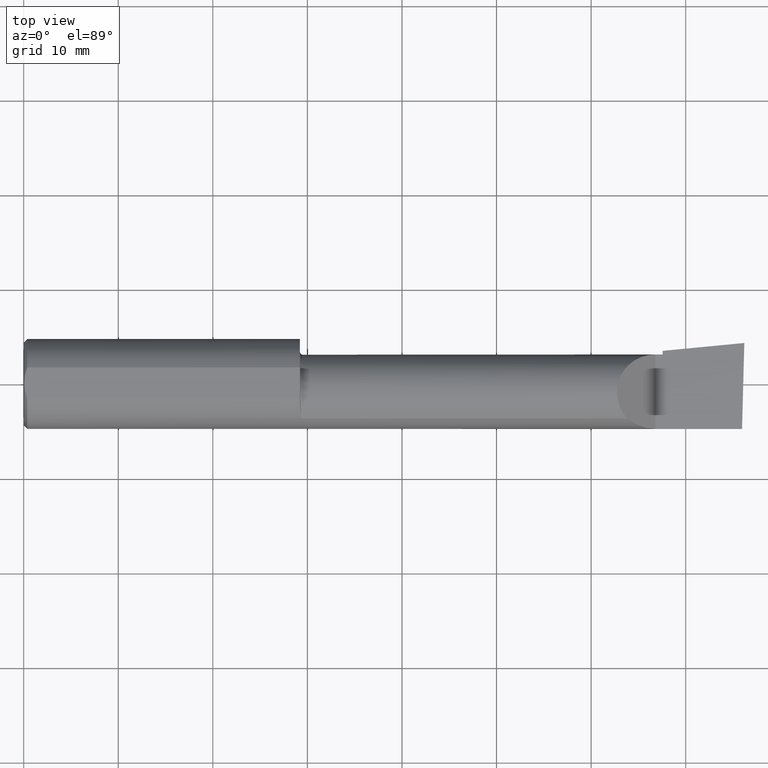
[diagram: clean part render]
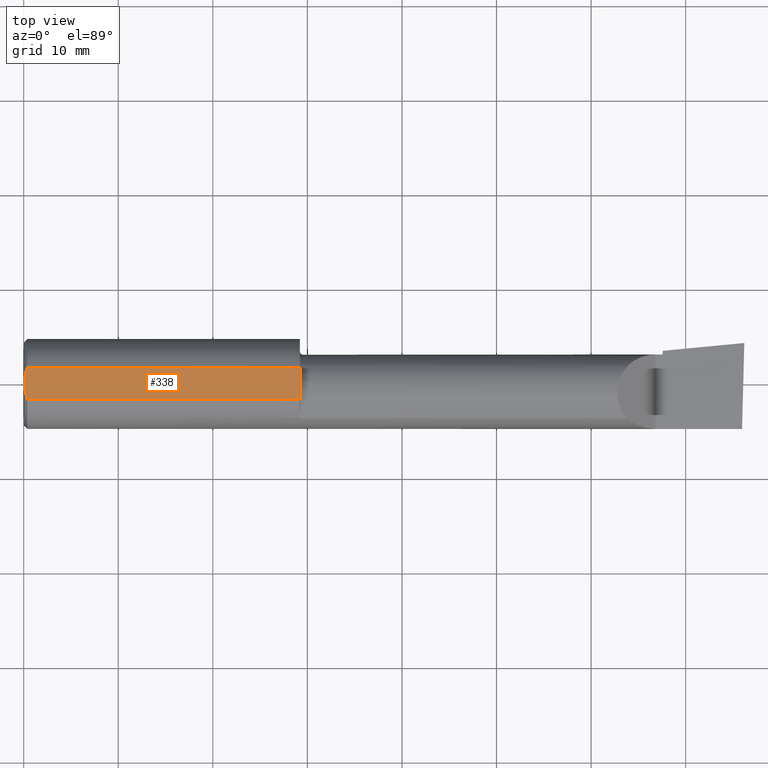
[diagram: same view with one face highlighted and labeled with its STEP entity id]
A machine part, top view. The second image highlights one B-rep face of the part: STEP entity #338.
In plain terms, the highlighted planar face has unit normal (0, -0, -1).
Its self-contained STEP definition (entity closure, byte-faithful):
#3 = EDGE_LOOP ( 'NONE', ( #440, #95, #236, #605, #196 ) ) ;
#7 = EDGE_CURVE ( 'NONE', #287, #353, #276, .T. ) ;
#38 = DIRECTION ( 'NONE',  ( 1.000000000000000000, 0.000000000000000000, 0.000000000000000000 ) ) ;
#47 = LINE ( 'NONE', #197, #118 ) ;
#53 = CARTESIAN_POINT ( 'NONE',  ( 0.01499999999999997863, -0.06597272163553657975, 0.1753499999999999781 ) ) ;
#94 = FACE_OUTER_BOUND ( 'NONE', #3, .T. ) ;
#95 = ORIENTED_EDGE ( 'NONE', *, *, #7, .F. ) ;
#101 = CARTESIAN_POINT ( 'NONE',  ( 0.008244775919947433529, 0.04453482769755864185, 0.1753499999999999504 ) ) ;
#118 = VECTOR ( 'NONE', #367, 39.37007874015748143 ) ;
#141 = VERTEX_POINT ( 'NONE', #517 ) ;
#152 = CARTESIAN_POINT ( 'NONE',  ( 0.003000000000000172234, 0.01127363201155565098, 0.1753499999999999781 ) ) ;
#156 = CARTESIAN_POINT ( 'NONE',  ( 0.003000000000000171800, -0.01126410975715119375, 0.1753500000000000059 ) ) ;
#194 = CARTESIAN_POINT ( 'NONE',  ( 1.150000000000000133, 0.06597272163553680180, 0.1753499999999999781 ) ) ;
#196 = ORIENTED_EDGE ( 'NONE', *, *, #211, .F. ) ;
#197 = CARTESIAN_POINT ( 'NONE',  ( 0.000000000000000000, -0.06597272163553671853, 0.1753499999999999226 ) ) ;
#211 = EDGE_CURVE ( 'NONE', #345, #141, #47, .T. ) ;
#213 = CARTESIAN_POINT ( 'NONE',  ( 1.150000000000000133, 0.2373500000000000332, 0.1753499999999999504 ) ) ;
#231 = CARTESIAN_POINT ( 'NONE',  ( 0.004093196532652217806, -0.02240707710020815174, 0.1753499999999999504 ) ) ;
#236 = ORIENTED_EDGE ( 'NONE', *, *, #356, .F. ) ;
#238 = AXIS2_PLACEMENT_3D ( 'NONE', #477, #626, #327 ) ;
#240 = VECTOR ( 'NONE', #551, 39.37007874015748143 ) ;
#276 = LINE ( 'NONE', #281, #495 ) ;
#279 = CARTESIAN_POINT ( 'NONE',  ( 0.003000000000000218638, 2.334609607045083916E-17, 0.1753499999999999781 ) ) ;
#281 = CARTESIAN_POINT ( 'NONE',  ( 0.000000000000000000, 0.06597272163553677404, 0.1753499999999999226 ) ) ;
#286 = PLANE ( 'NONE',  #238 ) ;
#287 = VERTEX_POINT ( 'NONE', #568 ) ;
#313 = EDGE_CURVE ( 'NONE', #141, #515, #476, .T. ) ;
#317 = CARTESIAN_POINT ( 'NONE',  ( 0.003000000000000218638, 2.334609607045083916E-17, 0.1753499999999999781 ) ) ;
#327 = DIRECTION ( 'NONE',  ( 0.000000000000000000, 1.000000000000000000, -1.438723400918613551E-16 ) ) ;
#337 = CARTESIAN_POINT ( 'NONE',  ( 0.01499999999999999424, 0.06597272163553677404, 0.1753499999999999226 ) ) ;
#338 = ADVANCED_FACE ( 'NONE', ( #94 ), #286, .F. ) ;
#345 = VERTEX_POINT ( 'NONE', #531 ) ;
#353 = VERTEX_POINT ( 'NONE', #194 ) ;
#356 = EDGE_CURVE ( 'NONE', #515, #287, #458, .T. ) ;
#367 = DIRECTION ( 'NONE',  ( -1.000000000000000000, -0.000000000000000000, -0.000000000000000000 ) ) ;
#378 = CARTESIAN_POINT ( 'NONE',  ( 0.003000000000000218638, 2.334609607045083916E-17, 0.1753499999999999781 ) ) ;
#380 = CARTESIAN_POINT ( 'NONE',  ( 0.008227791779583793277, -0.04447712204611815184, 0.1753499999999999781 ) ) ;
#440 = ORIENTED_EDGE ( 'NONE', *, *, #580, .F. ) ;
#441 = CARTESIAN_POINT ( 'NONE',  ( 0.01125230581755091823, 0.05532998191409932431, 0.1753500000000000059 ) ) ;
#458 = B_SPLINE_CURVE_WITH_KNOTS ( 'NONE', 3,
 ( #378, #152, #535, #101, #441, #337 ),
 .UNSPECIFIED., .F., .F.,
 ( 4, 2, 4 ),
 ( 0.003480013901590607410, 0.004330767971208085432, 0.005181522040825563453 ),
 .UNSPECIFIED. ) ;
#476 = B_SPLINE_CURVE_WITH_KNOTS ( 'NONE', 3,
 ( #53, #582, #380, #231, #156, #279 ),
 .UNSPECIFIED., .F., .F.,
 ( 4, 2, 4 ),
 ( 0.001779942938356815062, 0.002629978419973711019, 0.003480013901590607410 ),
 .UNSPECIFIED. ) ;
#477 = CARTESIAN_POINT ( 'NONE',  ( 3.000000000000000444, 0.2373500000000000332, 0.1753499999999999504 ) ) ;
#495 = VECTOR ( 'NONE', #38, 39.37007874015748143 ) ;
#515 = VERTEX_POINT ( 'NONE', #317 ) ;
#517 = CARTESIAN_POINT ( 'NONE',  ( 0.01499999999999997863, -0.06597272163553657975, 0.1753499999999999781 ) ) ;
#531 = CARTESIAN_POINT ( 'NONE',  ( 1.150000000000000133, -0.06597272163553659363, 0.1753499999999999781 ) ) ;
#535 = CARTESIAN_POINT ( 'NONE',  ( 0.004115035183746283340, 0.02255629470626750385, 0.1753499999999999781 ) ) ;
#548 = LINE ( 'NONE', #213, #240 ) ;
#551 = DIRECTION ( 'NONE',  ( -5.691349986800549142E-18, -1.000000000000000000, 1.438723400918613551E-16 ) ) ;
#568 = CARTESIAN_POINT ( 'NONE',  ( 0.01499999999999999424, 0.06597272163553677404, 0.1753499999999999226 ) ) ;
#580 = EDGE_CURVE ( 'NONE', #353, #345, #548, .T. ) ;
#582 = CARTESIAN_POINT ( 'NONE',  ( 0.01128414053810044074, -0.05542038647445821781, 0.1753499999999999781 ) ) ;
#605 = ORIENTED_EDGE ( 'NONE', *, *, #313, .F. ) ;
#626 = DIRECTION ( 'NONE',  ( 0.000000000000000000, -1.438723400918613551E-16, -1.000000000000000000 ) ) ;